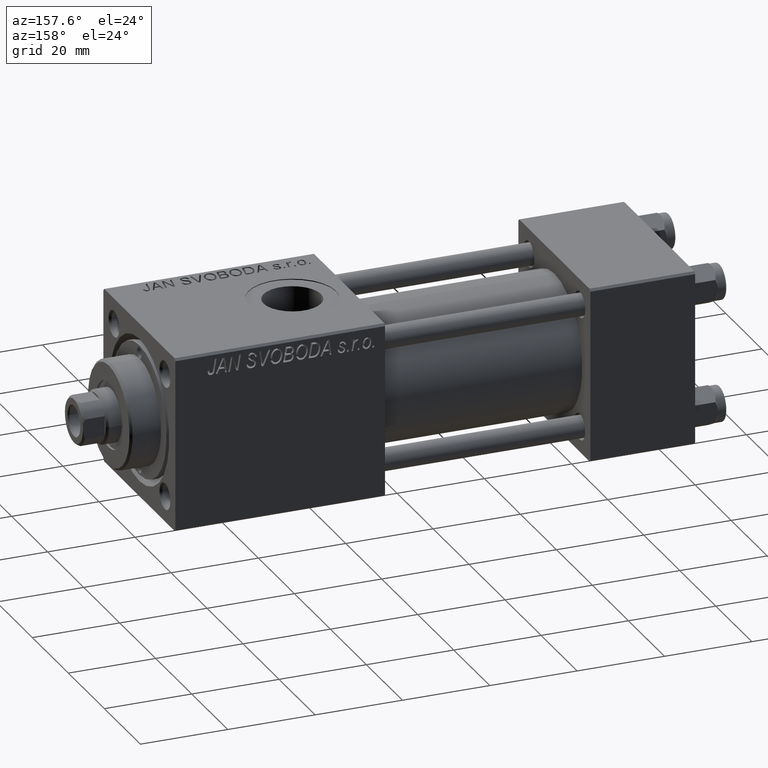
[diagram: clean part render]
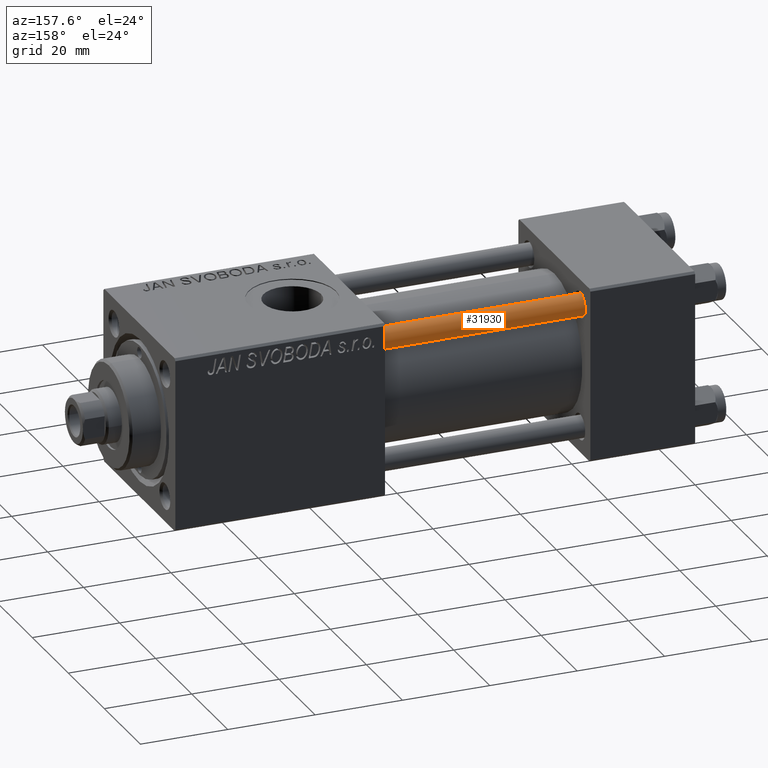
[diagram: same view with one face highlighted and labeled with its STEP entity id]
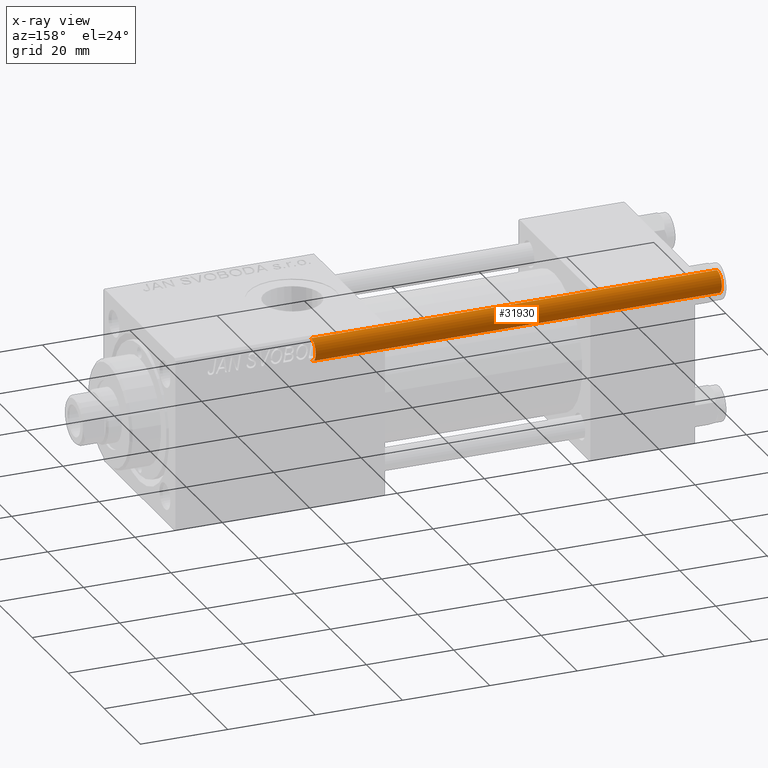
[diagram: x-ray of the same camera — body ghosted, the highlighted face saturated]
A machine part, auxiliary view. The second image highlights one B-rep face of the part: STEP entity #31930.
The next image is the same camera in x-ray: the body ghosted, the highlighted face saturated — about 0% of this face is hidden behind the body in this view.
In plain terms, the highlighted cylindrical surface (edge-blend (fillet) strip) has radius 2.5 mm, axis along (-1, 0, 0).
Its self-contained STEP definition (entity closure, byte-faithful):
#1974 = EDGE_LOOP ( 'NONE', ( #47976, #49195, #29228, #35743 ) ) ;
#3171 = AXIS2_PLACEMENT_3D ( 'NONE', #7615, #43835, #47007 ) ;
#3370 = EDGE_CURVE ( 'NONE', #37772, #37758, #17403, .T. ) ;
#3976 = VERTEX_POINT ( 'NONE', #12875 ) ;
#6891 = LINE ( 'NONE', #33755, #14219 ) ;
#7615 = CARTESIAN_POINT ( 'NONE',  ( 0.000000000000000000, 0.000000000000000000, 94.00000000000000000 ) ) ;
#11973 = AXIS2_PLACEMENT_3D ( 'NONE', #22422, #46315, #47092 ) ;
#12875 = CARTESIAN_POINT ( 'NONE',  ( -2.500000000000000000, 0.000000000000000000, 0.5000000000000004441 ) ) ;
#14219 = VECTOR ( 'NONE', #41885, 1000.000000000000000 ) ;
#17403 = CIRCLE ( 'NONE', #39295, 2.500000000000000000 ) ;
#17842 = CIRCLE ( 'NONE', #11973, 2.500000000000000000 ) ;
#20942 = DIRECTION ( 'NONE',  ( 0.000000000000000000, 0.000000000000000000, -1.000000000000000000 ) ) ;
#22422 = CARTESIAN_POINT ( 'NONE',  ( 0.000000000000000000, 0.000000000000000000, 0.5000000000000004441 ) ) ;
#27822 = CYLINDRICAL_SURFACE ( 'NONE', #3171, 2.500000000000000000 ) ;
#29228 = ORIENTED_EDGE ( 'NONE', *, *, #42501, .T. ) ;
#29946 = FACE_OUTER_BOUND ( 'NONE', #1974, .T. ) ;
#30245 = CARTESIAN_POINT ( 'NONE',  ( 2.500000000000000000, 3.061616997868383141E-16, 0.5000000000000004441 ) ) ;
#30629 = LINE ( 'NONE', #51635, #38685 ) ;
#31528 = EDGE_CURVE ( 'NONE', #37772, #3976, #6891, .T. ) ;
#31930 = ADVANCED_FACE ( 'NONE', ( #29946 ), #27822, .T. ) ;
#33755 = CARTESIAN_POINT ( 'NONE',  ( -2.500000000000000000, 0.000000000000000000, 94.00000000000000000 ) ) ;
#35071 = DIRECTION ( 'NONE',  ( -0.000000000000000000, -0.000000000000000000, -1.000000000000000000 ) ) ;
#35743 = ORIENTED_EDGE ( 'NONE', *, *, #31528, .F. ) ;
#36669 = CARTESIAN_POINT ( 'NONE',  ( 2.500000000000000000, 3.061616997868383141E-16, 93.50000000000001421 ) ) ;
#37758 = VERTEX_POINT ( 'NONE', #36669 ) ;
#37772 = VERTEX_POINT ( 'NONE', #48751 ) ;
#38632 = EDGE_CURVE ( 'NONE', #37758, #40278, #30629, .T. ) ;
#38685 = VECTOR ( 'NONE', #35071, 1000.000000000000000 ) ;
#39295 = AXIS2_PLACEMENT_3D ( 'NONE', #44306, #20942, #45085 ) ;
#40278 = VERTEX_POINT ( 'NONE', #30245 ) ;
#41885 = DIRECTION ( 'NONE',  ( -0.000000000000000000, -0.000000000000000000, -1.000000000000000000 ) ) ;
#42501 = EDGE_CURVE ( 'NONE', #40278, #3976, #17842, .T. ) ;
#43835 = DIRECTION ( 'NONE',  ( -0.000000000000000000, -0.000000000000000000, -1.000000000000000000 ) ) ;
#44306 = CARTESIAN_POINT ( 'NONE',  ( 0.000000000000000000, 0.000000000000000000, 93.50000000000001421 ) ) ;
#45085 = DIRECTION ( 'NONE',  ( 1.000000000000000000, 0.000000000000000000, 0.000000000000000000 ) ) ;
#46315 = DIRECTION ( 'NONE',  ( -0.000000000000000000, -0.000000000000000000, 1.000000000000000000 ) ) ;
#47007 = DIRECTION ( 'NONE',  ( -1.000000000000000000, 0.000000000000000000, 0.000000000000000000 ) ) ;
#47092 = DIRECTION ( 'NONE',  ( 1.000000000000000000, 0.000000000000000000, 0.000000000000000000 ) ) ;
#47976 = ORIENTED_EDGE ( 'NONE', *, *, #3370, .T. ) ;
#48751 = CARTESIAN_POINT ( 'NONE',  ( -2.500000000000000000, 0.000000000000000000, 93.50000000000001421 ) ) ;
#49195 = ORIENTED_EDGE ( 'NONE', *, *, #38632, .T. ) ;
#51635 = CARTESIAN_POINT ( 'NONE',  ( 2.500000000000000000, 3.061616997868383141E-16, 94.00000000000000000 ) ) ;